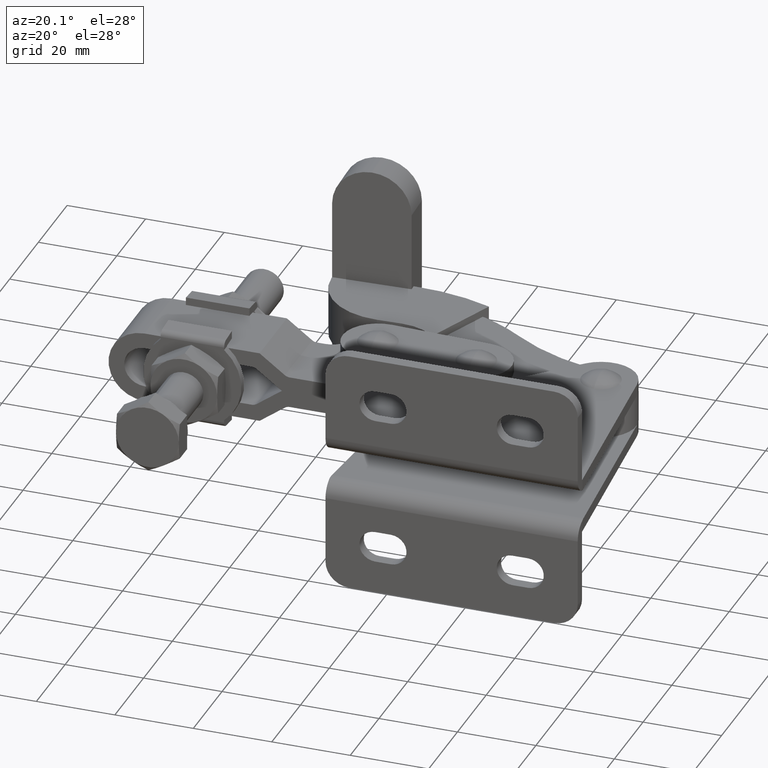
[diagram: clean part render]
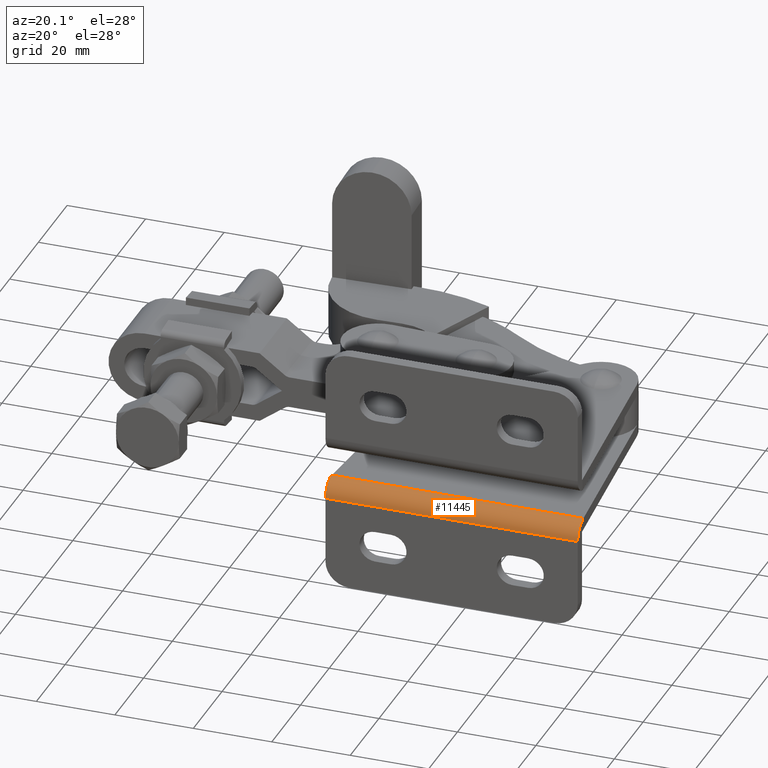
[diagram: same view with one face highlighted and labeled with its STEP entity id]
A machine part, auxiliary view. The second image highlights one B-rep face of the part: STEP entity #11445.
In plain terms, the highlighted cylindrical surface (edge-blend (fillet) strip) has radius 4.2 mm, axis along (1, -0, 0).
Its self-contained STEP definition (entity closure, byte-faithful):
#12 =( BOUNDED_CURVE ( )  B_SPLINE_CURVE ( 3, ( #8003, #9014, #2941, #10048 ),
 .UNSPECIFIED., .F., .F. ) 
 B_SPLINE_CURVE_WITH_KNOTS ( ( 4, 4 ),
 ( 1.570796326794899900, 1.811200543564165200 ),
 .UNSPECIFIED. ) 
 CURVE ( )  GEOMETRIC_REPRESENTATION_ITEM ( )  RATIONAL_B_SPLINE_CURVE ( ( 1.000000000000000000, 0.9951896138241140800, 0.9951896138241140800, 1.000000000000000000 ) ) 
 REPRESENTATION_ITEM ( '' )  );
#144 = EDGE_CURVE ( 'NONE', #4739, #4142, #523, .T. ) ;
#192 = CARTESIAN_POINT ( 'NONE',  ( -50.93493261757669900, -48.50000000000004300, -12.19999999999997300 ) ) ;
#489 = CARTESIAN_POINT ( 'NONE',  ( 13.27757871889746100, -48.50000000000005700, -8.000000000000007100 ) ) ;
#523 = LINE ( 'NONE', #12077, #5565 ) ;
#752 = ORIENTED_EDGE ( 'NONE', *, *, #144, .F. ) ;
#1009 = CARTESIAN_POINT ( 'NONE',  ( 13.27757871889746100, -48.50000000000005700, -8.000000000000007100 ) ) ;
#1122 = EDGE_LOOP ( 'NONE', ( #5622, #752, #3498, #2794, #2215, #5431 ) ) ;
#1191 = DIRECTION ( 'NONE',  ( 1.000000000000000000, -0.0000000000000000000, -0.0000000000000000000 ) ) ;
#1195 = DIRECTION ( 'NONE',  ( 0.0000000000000000000, 1.000000000000000000, 0.0000000000000000000 ) ) ;
#1678 = LINE ( 'NONE', #7186, #12169 ) ;
#1776 = EDGE_CURVE ( 'NONE', #3196, #4142, #2379, .T. ) ;
#2195 = VERTEX_POINT ( 'NONE', #9770 ) ;
#2215 = ORIENTED_EDGE ( 'NONE', *, *, #12192, .T. ) ;
#2379 =( BOUNDED_CURVE ( )  B_SPLINE_CURVE ( 3, ( #6539, #9500, #3422, #489 ),
 .UNSPECIFIED., .F., .F. ) 
 B_SPLINE_CURVE_WITH_KNOTS ( ( 4, 4 ),
 ( 1.330392110025624900, 1.570796326794896600 ),
 .UNSPECIFIED. ) 
 CURVE ( )  GEOMETRIC_REPRESENTATION_ITEM ( )  RATIONAL_B_SPLINE_CURVE ( ( 1.000000000000000000, 0.9951896138241137500, 0.9951896138241137500, 1.000000000000000000 ) ) 
 REPRESENTATION_ITEM ( '' )  );
#2628 = DIRECTION ( 'NONE',  ( -1.000000000000000000, 2.065146995210500700E-016, -0.0000000000000000000 ) ) ;
#2794 = ORIENTED_EDGE ( 'NONE', *, *, #5206, .T. ) ;
#2941 = CARTESIAN_POINT ( 'NONE',  ( -50.90626463645004700, -49.17232347630772400, -8.040456072373212100 ) ) ;
#3020 = AXIS2_PLACEMENT_3D ( 'NONE', #8705, #2628, #9718 ) ;
#3196 = VERTEX_POINT ( 'NONE', #8107 ) ;
#3422 = CARTESIAN_POINT ( 'NONE',  ( 13.30709555061655400, -48.83737893036087700, -8.000000000000007100 ) ) ;
#3498 = ORIENTED_EDGE ( 'NONE', *, *, #12097, .T. ) ;
#3950 = EDGE_CURVE ( 'NONE', #2195, #3196, #9945, .T. ) ;
#4111 = CARTESIAN_POINT ( 'NONE',  ( -50.93493261757669900, -49.50000000000007100, -8.120784389125788000 ) ) ;
#4142 = VERTEX_POINT ( 'NONE', #1009 ) ;
#4739 = VERTEX_POINT ( 'NONE', #9034 ) ;
#4840 = VERTEX_POINT ( 'NONE', #4111 ) ;
#5206 = EDGE_CURVE ( 'NONE', #4840, #5755, #9107, .T. ) ;
#5356 = FACE_OUTER_BOUND ( 'NONE', #1122, .T. ) ;
#5431 = ORIENTED_EDGE ( 'NONE', *, *, #3950, .T. ) ;
#5565 = VECTOR ( 'NONE', #9002, 1000.000000000000000 ) ;
#5581 = AXIS2_PLACEMENT_3D ( 'NONE', #192, #7236, #1195 ) ;
#5622 = ORIENTED_EDGE ( 'NONE', *, *, #1776, .T. ) ;
#5755 = VERTEX_POINT ( 'NONE', #6080 ) ;
#6059 = DIRECTION ( 'NONE',  ( 0.0000000000000000000, 1.000000000000000000, 0.0000000000000000000 ) ) ;
#6080 = CARTESIAN_POINT ( 'NONE',  ( -50.93493261757669900, -52.70000000000002400, -12.19999999999998200 ) ) ;
#6539 = CARTESIAN_POINT ( 'NONE',  ( 13.36506738242340800, -49.50000000000009900, -8.120784389125791600 ) ) ;
#7186 = CARTESIAN_POINT ( 'NONE',  ( -18.78493261757664700, -52.70000000000002400, -12.19999999999998900 ) ) ;
#7236 = DIRECTION ( 'NONE',  ( 1.000000000000000000, -2.065146995210500700E-016, 0.0000000000000000000 ) ) ;
#8003 = CARTESIAN_POINT ( 'NONE',  ( -50.84744395405078900, -48.50000000000005700, -8.000000000000007100 ) ) ;
#8107 = CARTESIAN_POINT ( 'NONE',  ( 13.36506738242340800, -49.50000000000009900, -8.120784389125791600 ) ) ;
#8705 = CARTESIAN_POINT ( 'NONE',  ( 13.36506738242340700, -48.50000000000005700, -12.19999999999997300 ) ) ;
#8739 = AXIS2_PLACEMENT_3D ( 'NONE', #11113, #10148, #6059 ) ;
#9002 = DIRECTION ( 'NONE',  ( 1.000000000000000000, -0.0000000000000000000, -0.0000000000000000000 ) ) ;
#9014 = CARTESIAN_POINT ( 'NONE',  ( -50.87696078576986000, -48.83737893036087700, -8.000000000000008900 ) ) ;
#9034 = CARTESIAN_POINT ( 'NONE',  ( -50.84744395405078900, -48.50000000000005700, -8.000000000000007100 ) ) ;
#9107 = CIRCLE ( 'NONE', #5581, 4.199999999999967300 ) ;
#9500 = CARTESIAN_POINT ( 'NONE',  ( 13.33639940129674400, -49.17232347630773900, -8.040456072373210400 ) ) ;
#9718 = DIRECTION ( 'NONE',  ( 0.0000000000000000000, 1.000000000000000000, 8.260587980842002900E-016 ) ) ;
#9770 = CARTESIAN_POINT ( 'NONE',  ( 13.36506738242340700, -52.70000000000002400, -12.19999999999998200 ) ) ;
#9945 = CIRCLE ( 'NONE', #3020, 4.199999999999967300 ) ;
#10048 = CARTESIAN_POINT ( 'NONE',  ( -50.93493261757669900, -49.50000000000007100, -8.120784389125788000 ) ) ;
#10148 = DIRECTION ( 'NONE',  ( 1.000000000000000000, -2.065146995210500700E-016, 0.0000000000000000000 ) ) ;
#10447 = CYLINDRICAL_SURFACE ( 'NONE', #8739, 4.199999999999967300 ) ;
#11113 = CARTESIAN_POINT ( 'NONE',  ( 13.36506738242341000, -48.50000000000005700, -12.19999999999997300 ) ) ;
#11445 = ADVANCED_FACE ( 'NONE', ( #5356 ), #10447, .T. ) ;
#12077 = CARTESIAN_POINT ( 'NONE',  ( -18.78493261757664700, -48.50000000000005700, -8.000000000000007100 ) ) ;
#12097 = EDGE_CURVE ( 'NONE', #4739, #4840, #12, .T. ) ;
#12169 = VECTOR ( 'NONE', #1191, 1000.000000000000000 ) ;
#12192 = EDGE_CURVE ( 'NONE', #5755, #2195, #1678, .T. ) ;